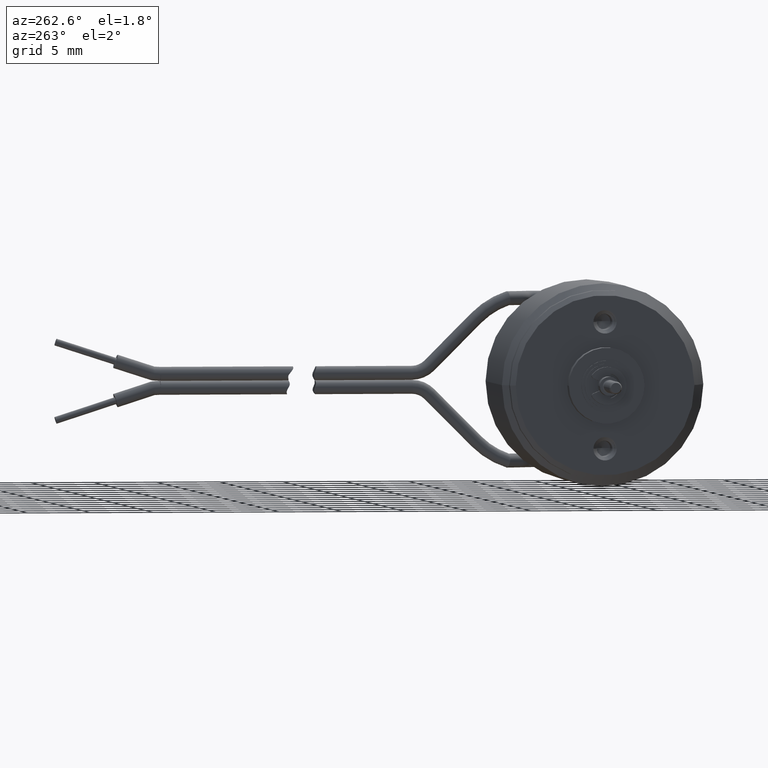
[diagram: clean part render]
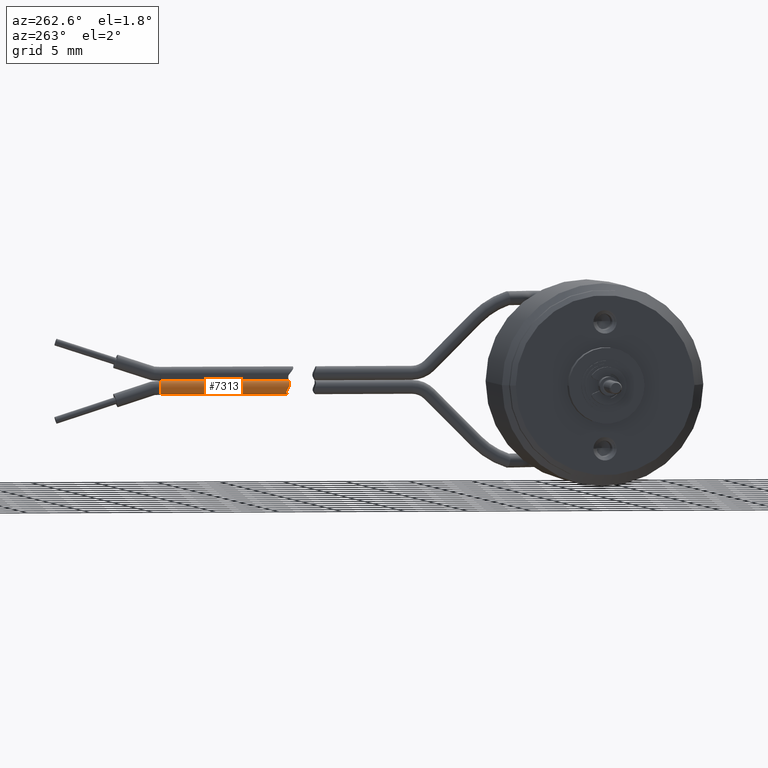
[diagram: same view with one face highlighted and labeled with its STEP entity id]
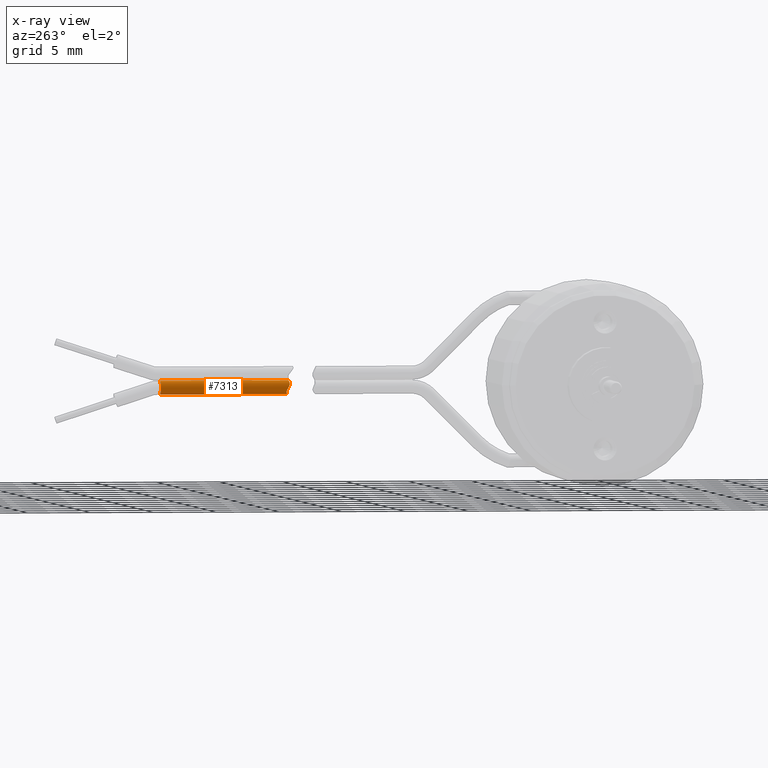
[diagram: x-ray of the same camera — body ghosted, the highlighted face saturated]
A machine part, auxiliary view. The second image highlights one B-rep face of the part: STEP entity #7313.
The next image is the same camera in x-ray: the body ghosted, the highlighted face saturated — about 0% of this face is hidden behind the body in this view.
In plain terms, the highlighted cylindrical surface (edge-blend (fillet) strip) has radius 0.55 mm, axis along (0, 1, 0).
Its self-contained STEP definition (entity closure, byte-faithful):
#6721=CARTESIAN_POINT('',(2.185E1,3.332659346304E1,-5.500000000001E-1));
#6732=CARTESIAN_POINT('',(2.24E1,3.332659346304E1,-5.5E-1));
#6733=DIRECTION('',(0.E0,1.E0,0.E0));
#6734=DIRECTION('',(-1.E0,0.E0,-2.537364258098E-13));
#6735=AXIS2_PLACEMENT_3D('',#6732,#6733,#6734);
#6737=CARTESIAN_POINT('',(2.243672777148E1,2.312396373575E1,
-3.267707195417E-4));
#6753=CARTESIAN_POINT('',(2.236157064806E1,2.323588027422E1,-1.098655798210E0));
#6755=DIRECTION('',(1.667786121966E-4,9.999999811202E-1,-9.972243219289E-5));
#6756=VECTOR('',#6755,1.020262991992E1);
#6757=CARTESIAN_POINT('',(2.243672777148E1,2.312396373575E1,
-3.267707195417E-4));
#6758=LINE('',#6757,#6756);
#6772=CARTESIAN_POINT('',(2.236157044736E1,3.332659346304E1,-1.098655784153E0));
#6774=CARTESIAN_POINT('',(2.236157064806E1,2.323588027422E1,-1.098655798210E0));
#6775=CARTESIAN_POINT('',(2.233574605183E1,2.323693679035E1,-1.096846972895E0));
#6776=CARTESIAN_POINT('',(2.228465238201E1,2.324115505291E1,-1.089629271009E0));
#6777=CARTESIAN_POINT('',(2.221029881111E1,2.325344687993E1,-1.068127594314E0));
#6778=CARTESIAN_POINT('',(2.214206666742E1,2.326995896314E1,-1.037599365579E0));
#6779=CARTESIAN_POINT('',(2.207991670865E1,2.328843087739E1,
-9.993033892672E-1));
#6780=CARTESIAN_POINT('',(2.201979801497E1,2.330735915414E1,
-9.502343170990E-1));
#6781=CARTESIAN_POINT('',(2.195973453093E1,2.332071829542E1,
-8.843607990950E-1));
#6782=CARTESIAN_POINT('',(2.190396257298E1,2.330986022597E1,
-7.959156692297E-1));
#6783=CARTESIAN_POINT('',(2.186493500504E1,2.326439853421E1,
-6.919344380721E-1));
#6784=CARTESIAN_POINT('',(2.184779255625E1,2.319953516728E1,
-5.868974692042E-1));
#6785=CARTESIAN_POINT('',(2.185098549262E1,2.313077655917E1,
-4.766896793164E-1));
#6786=CARTESIAN_POINT('',(2.187824210829E1,2.307823608300E1,
-3.625564856580E-1));
#6787=CARTESIAN_POINT('',(2.193182296802E1,2.306571145687E1,
-2.533527553631E-1));
#6788=CARTESIAN_POINT('',(2.200262430489E1,2.307772421118E1,
-1.645951283308E-1));
#6789=CARTESIAN_POINT('',(2.208437587446E1,2.309438379750E1,
-9.535844311773E-2));
#6790=CARTESIAN_POINT('',(2.217996558311E1,2.311040273457E1,
-4.178542670439E-2));
#6791=CARTESIAN_POINT('',(2.228818425836E1,2.312136663472E1,
-7.608599436116E-3));
#6792=CARTESIAN_POINT('',(2.236233486287E1,2.312388001001E1,8.132521748907E-5));
#6793=CARTESIAN_POINT('',(2.240033117682E1,2.312385230883E1,
-3.878291971075E-6));
#6795=DIRECTION('',(-1.988929442328E-8,1.E0,1.393111448066E-9));
#6796=VECTOR('',#6795,1.009071318882E1);
#6797=CARTESIAN_POINT('',(2.236157064806E1,2.323588027422E1,-1.098655798210E0));
#6798=LINE('',#6797,#6796);
#6799=CARTESIAN_POINT('',(2.236157044736E1,3.332659346304E1,-1.098655784153E0));
#6800=CARTESIAN_POINT('',(2.230617216599E1,3.332659466777E1,-1.094775537086E0));
#6801=CARTESIAN_POINT('',(2.219625057652E1,3.332659290391E1,-1.070450510914E0));
#6802=CARTESIAN_POINT('',(2.204618176849E1,3.332659361291E1,
-9.823349389177E-1));
#6803=CARTESIAN_POINT('',(2.193615038444E1,3.332659342269E1,
-8.598277473102E-1));
#6804=CARTESIAN_POINT('',(2.186647933214E1,3.332659347457E1,
-7.133995113886E-1));
#6805=CARTESIAN_POINT('',(2.185E1,3.332659346304E1,-6.046011979666E-1));
#6806=CARTESIAN_POINT('',(2.185E1,3.332659346304E1,-5.499999999812E-1));
#6964=CARTESIAN_POINT('',(2.243672777148E1,2.312396373575E1,
-3.267707195417E-4));
#6965=CARTESIAN_POINT('',(2.243051316116E1,2.312382463708E1,
-7.527381687344E-4));
#6966=CARTESIAN_POINT('',(2.241918373099E1,2.312407559870E1,1.026755903174E-3));
#6967=CARTESIAN_POINT('',(2.240664856053E1,2.312385279766E1,
-3.878291971077E-6));
#6968=CARTESIAN_POINT('',(2.240033117682E1,2.312385230883E1,
-3.878291971075E-6));
#6970=CARTESIAN_POINT('',(2.240033117682E1,2.312385230883E1,
-3.878291971075E-6));
#7185=VERTEX_POINT('',#6721);
#7188=VERTEX_POINT('',#6772);
#7189=CARTESIAN_POINT('',(2.243842935194E1,3.332659346304E1,
-1.344201789919E-3));
#7190=VERTEX_POINT('',#7189);
#7207=VERTEX_POINT('',#6737);
#7208=VERTEX_POINT('',#6753);
#7209=VERTEX_POINT('',#6970);
#7298=CARTESIAN_POINT('',(2.24E1,1.332659346304E1,-5.5E-1));
#7299=DIRECTION('',(0.E0,1.E0,0.E0));
#7300=DIRECTION('',(6.987154898019E-2,0.E0,9.975559967456E-1));
#7301=AXIS2_PLACEMENT_3D('',#7298,#7299,#7300);
#7302=CYLINDRICAL_SURFACE('',#7301,5.5E-1);
#7303=ORIENTED_EDGE('',*,*,#7289,.F.);
#7304=ORIENTED_EDGE('',*,*,#7271,.T.);
#7306=ORIENTED_EDGE('',*,*,#7305,.T.);
#7307=ORIENTED_EDGE('',*,*,#7253,.T.);
#7308=ORIENTED_EDGE('',*,*,#7265,.F.);
#7310=ORIENTED_EDGE('',*,*,#7309,.T.);
#7311=EDGE_LOOP('',(#7303,#7304,#7306,#7307,#7308,#7310));
#7312=FACE_OUTER_BOUND('',#7311,.F.);
#7313=ADVANCED_FACE('',(#7312),#7302,.T.);
#6736=CIRCLE('',#6735,5.5E-1);
#6794=B_SPLINE_CURVE_WITH_KNOTS('',3,(#6774,#6775,#6776,#6777,#6778,#6779,#6780,
#6781,#6782,#6783,#6784,#6785,#6786,#6787,#6788,#6789,#6790,#6791,#6792,#6793),
.UNSPECIFIED.,.F.,.F.,(4,1,1,1,1,1,1,1,1,1,1,1,1,1,1,1,1,4),(0.E0,
5.882352941176E-2,1.176470588235E-1,1.764705882353E-1,2.352941176471E-1,
2.941176470588E-1,3.529411764706E-1,4.117647058824E-1,4.705882352941E-1,
5.294117647059E-1,5.882352941176E-1,6.470588235294E-1,7.058823529412E-1,
7.647058823529E-1,8.235294117647E-1,8.823529411765E-1,9.411764705882E-1,1.E0),
.UNSPECIFIED.);
#6807=B_SPLINE_CURVE_WITH_KNOTS('',3,(#6799,#6800,#6801,#6802,#6803,#6804,#6805,
#6806),.UNSPECIFIED.,.F.,.F.,(4,1,1,1,1,4),(0.E0,2.E-1,4.E-1,6.E-1,8.E-1,1.E0),
.UNSPECIFIED.);
#6969=B_SPLINE_CURVE_WITH_KNOTS('',3,(#6964,#6965,#6966,#6967,#6968),
.UNSPECIFIED.,.F.,.F.,(4,1,4),(0.E0,5.E-1,1.E0),.UNSPECIFIED.);
#7253=EDGE_CURVE('',#7185,#7190,#6736,.T.);
#7265=EDGE_CURVE('',#7207,#7190,#6758,.T.);
#7271=EDGE_CURVE('',#7208,#7188,#6798,.T.);
#7289=EDGE_CURVE('',#7208,#7209,#6794,.T.);
#7305=EDGE_CURVE('',#7188,#7185,#6807,.T.);
#7309=EDGE_CURVE('',#7207,#7209,#6969,.T.);